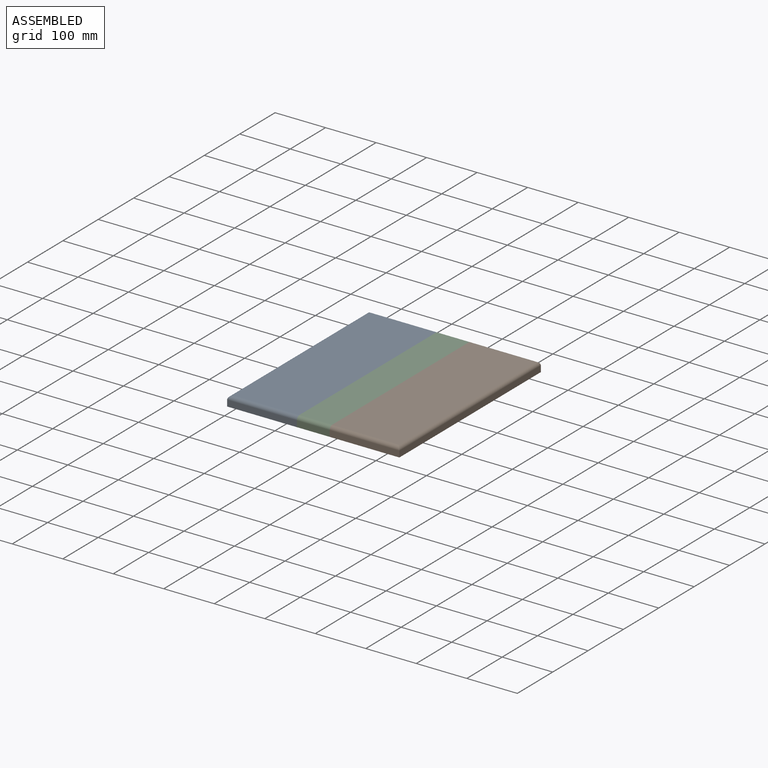
[diagram: assembled view]
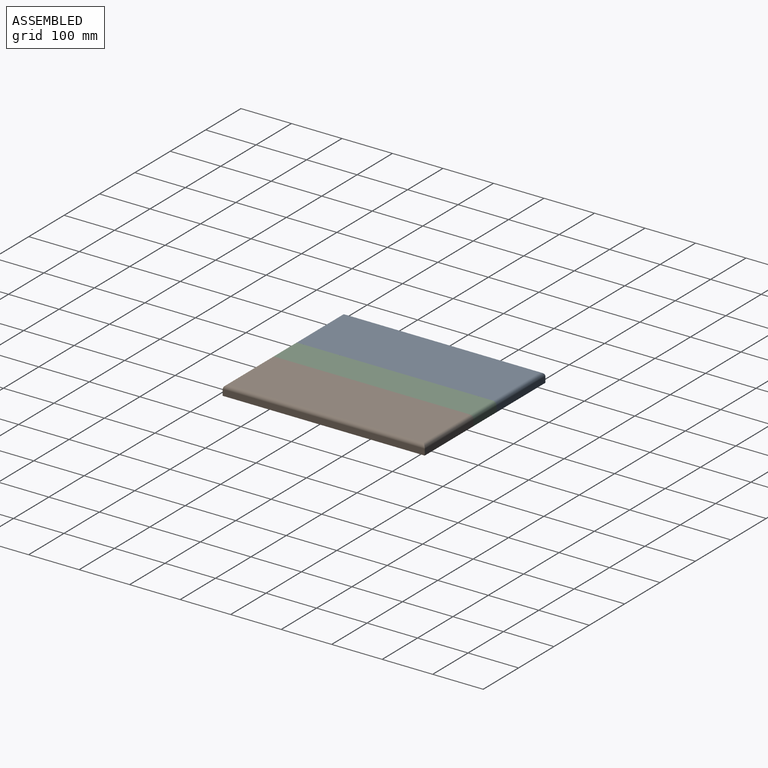
[diagram: assembled view, second angle]
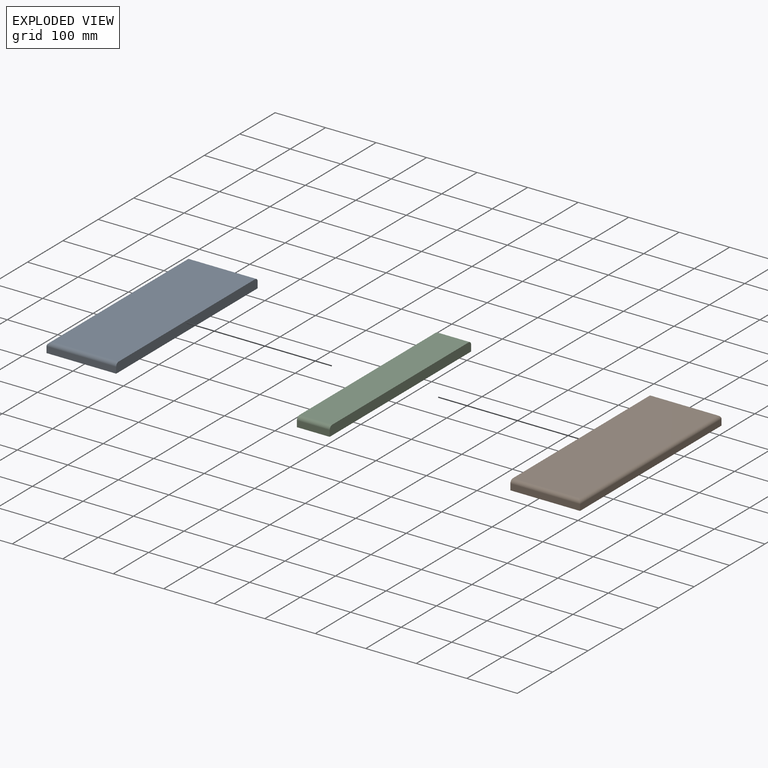
[diagram: exploded view]
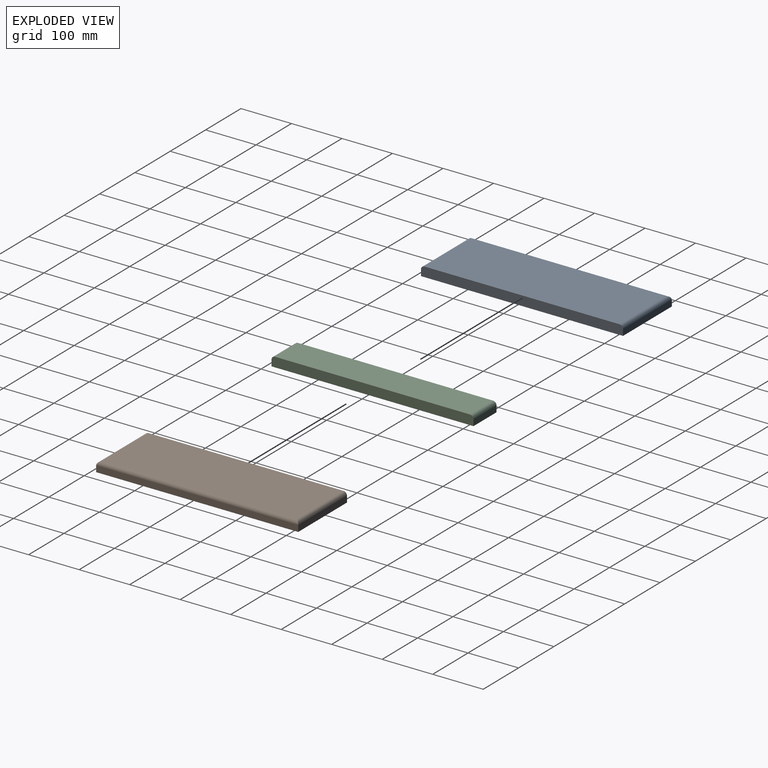
[diagram: exploded view, second angle]
ASSEMBLY  parts=3 mates=2
PART A: 9 faces, bbox 138x400x19 mm
  f0: plane 138x12mm, normal (0,1,0), area 1656mm2, adj f1,f3,f5,f6
  f1: plane 400x12mm, normal (-1,0,0), area 4800mm2, adj f0,f2,f5,f7
  f2: plane 138x12mm, normal (0,-1,0), area 1656mm2, adj f1,f3,f5,f8
  f3: plane 400x19mm, normal (1,0,0), area 7579mm2, adj f0,f2,f4,f5,f6,f8
  f4: plane 386x131mm, normal (0,0,1), area 50566mm2, adj f3,f6,f7,f8
  f5: plane 400x138mm, normal (0,0,-1), area 55200mm2, adj f0,f1,f2,f3
  f6: cylinder r=7mm len=138mm, axis (1,0,0), area 1489.4mm2, adj f0,f3,f4,f7
  f7: cylinder r=7mm len=400mm, axis (0,1,0), area 4342.3mm2, adj f1,f4,f6,f8
  f8: cylinder r=7mm len=138mm, axis (-1,0,0), area 1489.4mm2, adj f2,f3,f4,f7
PART B: 9 faces, bbox 138x400x19 mm
  f0: plane 138x12mm, normal (0,1,0), area 1656mm2, adj f1,f3,f5,f6
  f1: plane 400x19mm, normal (-1,0,0), area 7579mm2, adj f0,f2,f4,f5,f6,f8
  f2: plane 138x12mm, normal (0,-1,0), area 1656mm2, adj f1,f3,f5,f8
  f3: plane 400x12mm, normal (1,0,0), area 4800mm2, adj f0,f2,f5,f7
  f4: plane 386x131mm, normal (0,0,1), area 50566mm2, adj f1,f6,f7,f8
  f5: plane 400x138mm, normal (0,0,-1), area 55200mm2, adj f0,f1,f2,f3
  f6: cylinder r=7mm len=138mm, axis (1,0,0), area 1489.4mm2, adj f0,f1,f4,f7
  f7: cylinder r=7mm len=400mm, axis (0,-1,0), area 4342.3mm2, adj f3,f4,f6,f8
  f8: cylinder r=7mm len=138mm, axis (-1,0,0), area 1489.4mm2, adj f1,f2,f4,f7
PART C: 8 faces, bbox 65x400x19 mm
  f0: plane 65x12mm, normal (0,1,0), area 780mm2, adj f1,f3,f5,f7
  f1: plane 400x19mm, normal (-1,0,0), area 7579mm2, adj f0,f2,f4,f5,f6,f7
  f2: plane 65x12mm, normal (0,-1,0), area 780mm2, adj f1,f3,f5,f6
  f3: plane 400x19mm, normal (1,0,0), area 7579mm2, adj f0,f2,f4,f5,f6,f7
  f4: plane 386x65mm, normal (0,0,1), area 25090mm2, adj f1,f3,f6,f7
  f5: plane 400x65mm, normal (0,0,-1), area 26000mm2, adj f0,f1,f2,f3
  f6: cylinder r=7mm len=65mm, axis (-1,0,0), area 714.7mm2, adj f1,f2,f3,f4
  f7: cylinder r=7mm len=65mm, axis (1,0,0), area 714.7mm2, adj f0,f1,f3,f4
PLACE A t=(30.89,0,0)mm
PLACE B t=(-32.35,0,0)mm
PLACE C at identity
MATE fastened B.f1 <-> C.f3  axis (-1,0,0) through (95.89,17.86,9.48)mm
MATE fastened A.f3 <-> C.f1  axis (1,0,0) through (30.89,17.86,9.48)mm
